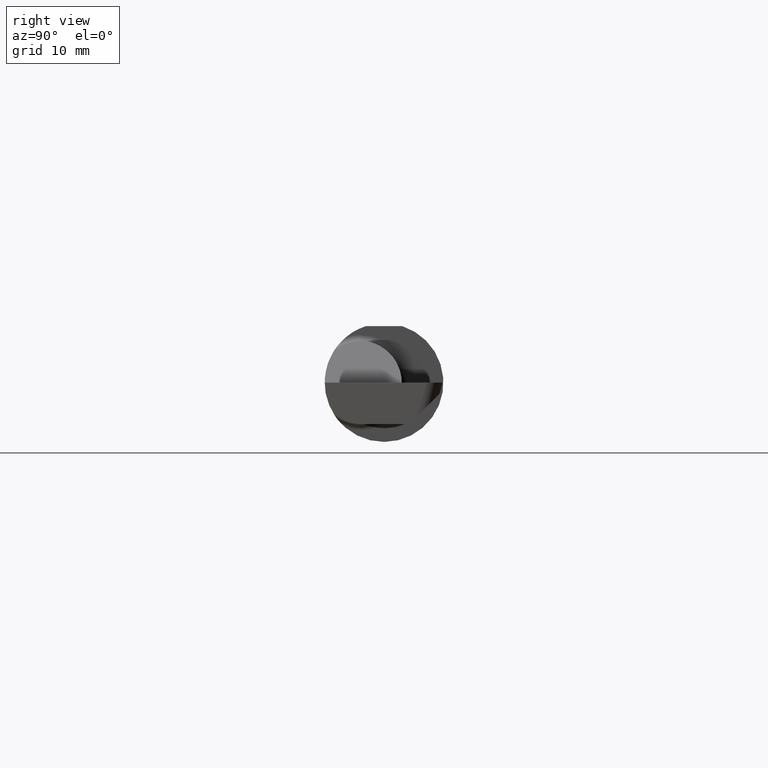
[diagram: clean part render]
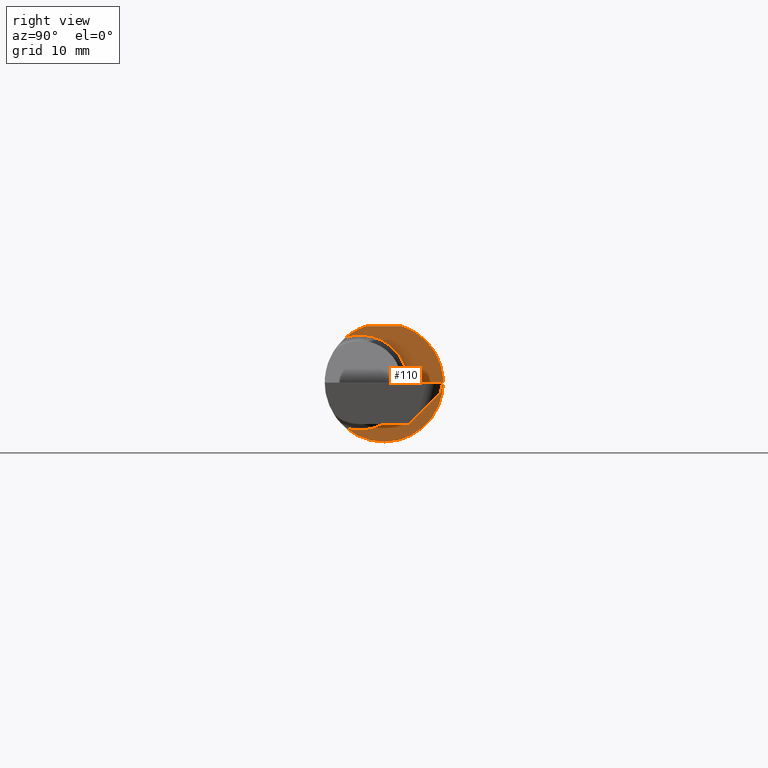
[diagram: same view with one face highlighted and labeled with its STEP entity id]
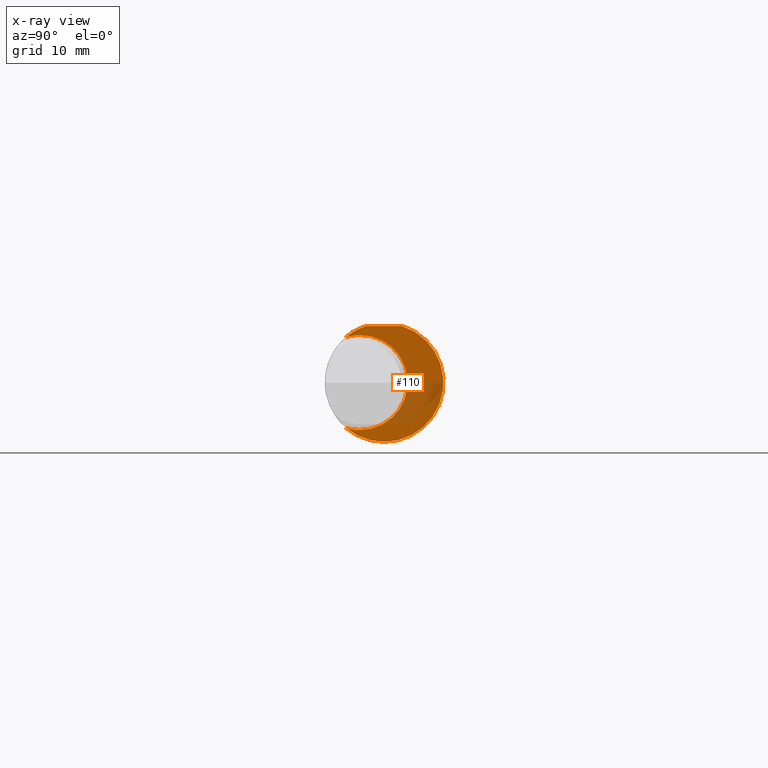
[diagram: x-ray of the same camera — body ghosted, the highlighted face saturated]
A machine part, right view. The second image highlights one B-rep face of the part: STEP entity #110.
The next image is the same camera in x-ray: the body ghosted, the highlighted face saturated — about 25% of this face is hidden behind the body in this view.
In plain terms, the highlighted planar face has unit normal (1, 0, 0).
Its self-contained STEP definition (entity closure, byte-faithful):
#10 = CARTESIAN_POINT ( 'NONE',  ( 2.200000000000000178, 0.000000000000000000, 0.000000000000000000 ) ) ;
#11 = DIRECTION ( 'NONE',  ( 0.000000000000000000, 0.000000000000000000, -1.000000000000000000 ) ) ;
#43 = CARTESIAN_POINT ( 'NONE',  ( 2.200000000000000178, -0.1008500000000000091, 0.1999999999999999556 ) ) ;
#53 = ORIENTED_EDGE ( 'NONE', *, *, #622, .T. ) ;
#73 = PLANE ( 'NONE',  #405 ) ;
#79 = CARTESIAN_POINT ( 'NONE',  ( 2.200000000000000178, -0.1008500000000000091, 0.000000000000000000 ) ) ;
#87 = DIRECTION ( 'NONE',  ( 0.000000000000000000, 1.000000000000000000, 0.000000000000000000 ) ) ;
#105 = EDGE_CURVE ( 'NONE', #796, #509, #525, .T. ) ;
#110 = ADVANCED_FACE ( 'NONE', ( #501 ), #73, .T. ) ;
#114 = AXIS2_PLACEMENT_3D ( 'NONE', #783, #210, #450 ) ;
#152 = LINE ( 'NONE', #660, #797 ) ;
#205 = EDGE_CURVE ( 'NONE', #697, #324, #456, .T. ) ;
#206 = CARTESIAN_POINT ( 'NONE',  ( 2.200000000000000178, 0.07650098038587520299, 0.2378499999999998671 ) ) ;
#210 = DIRECTION ( 'NONE',  ( 1.000000000000000000, 0.000000000000000000, 0.000000000000000000 ) ) ;
#245 = EDGE_CURVE ( 'NONE', #324, #802, #685, .T. ) ;
#255 = DIRECTION ( 'NONE',  ( 0.000000000000000000, 0.000000000000000000, 1.000000000000000000 ) ) ;
#258 = DIRECTION ( 'NONE',  ( 1.000000000000000000, 0.000000000000000000, 0.000000000000000000 ) ) ;
#272 = CARTESIAN_POINT ( 'NONE',  ( 2.200000000000000178, -0.1008500000000000091, 0.000000000000000000 ) ) ;
#293 = ORIENTED_EDGE ( 'NONE', *, *, #205, .T. ) ;
#300 = EDGE_CURVE ( 'NONE', #802, #796, #377, .T. ) ;
#314 = EDGE_CURVE ( 'NONE', #697, #518, #152, .T. ) ;
#324 = VERTEX_POINT ( 'NONE', #594 ) ;
#339 = DIRECTION ( 'NONE',  ( -1.000000000000000000, -0.000000000000000000, -0.000000000000000000 ) ) ;
#374 = CARTESIAN_POINT ( 'NONE',  ( 2.200000000000000178, 0.2498499999999999055, 0.000000000000000000 ) ) ;
#377 = CIRCLE ( 'NONE', #812, 0.1999999999999999556 ) ;
#379 = CARTESIAN_POINT ( 'NONE',  ( 2.200000000000000178, -0.1616050818046604609, -0.1905487340154979614 ) ) ;
#383 = CARTESIAN_POINT ( 'NONE',  ( 2.200000000000000178, -0.07650098038587527238, 0.2378499999999998671 ) ) ;
#402 = CARTESIAN_POINT ( 'NONE',  ( 2.200000000000000178, -0.1008500000000000091, 0.000000000000000000 ) ) ;
#405 = AXIS2_PLACEMENT_3D ( 'NONE', #374, #508, #11 ) ;
#429 = AXIS2_PLACEMENT_3D ( 'NONE', #10, #258, #439 ) ;
#439 = DIRECTION ( 'NONE',  ( 0.000000000000000000, 0.000000000000000000, -1.000000000000000000 ) ) ;
#441 = EDGE_LOOP ( 'NONE', ( #53, #480, #293, #818, #703, #452 ) ) ;
#450 = DIRECTION ( 'NONE',  ( 0.000000000000000000, 0.000000000000000000, -1.000000000000000000 ) ) ;
#452 = ORIENTED_EDGE ( 'NONE', *, *, #105, .T. ) ;
#456 = CIRCLE ( 'NONE', #114, 0.2498499999999999888 ) ;
#462 = DIRECTION ( 'NONE',  ( -1.000000000000000000, -0.000000000000000000, -0.000000000000000000 ) ) ;
#480 = ORIENTED_EDGE ( 'NONE', *, *, #314, .F. ) ;
#485 = CIRCLE ( 'NONE', #429, 0.2498499999999999888 ) ;
#494 = DIRECTION ( 'NONE',  ( -1.000000000000000000, -0.000000000000000000, -0.000000000000000000 ) ) ;
#501 = FACE_OUTER_BOUND ( 'NONE', #441, .T. ) ;
#508 = DIRECTION ( 'NONE',  ( 1.000000000000000000, 0.000000000000000000, 0.000000000000000000 ) ) ;
#509 = VERTEX_POINT ( 'NONE', #379 ) ;
#518 = VERTEX_POINT ( 'NONE', #206 ) ;
#525 = CIRCLE ( 'NONE', #773, 0.1999999999999999556 ) ;
#540 = CARTESIAN_POINT ( 'NONE',  ( 2.200000000000000178, -0.1008499999999999952, -0.1999999999999999556 ) ) ;
#594 = CARTESIAN_POINT ( 'NONE',  ( 2.200000000000000178, -0.1616050818046604609, 0.1905487340154979614 ) ) ;
#622 = EDGE_CURVE ( 'NONE', #509, #518, #485, .T. ) ;
#648 = DIRECTION ( 'NONE',  ( 0.000000000000000000, 0.000000000000000000, 1.000000000000000000 ) ) ;
#657 = AXIS2_PLACEMENT_3D ( 'NONE', #272, #339, #648 ) ;
#660 = CARTESIAN_POINT ( 'NONE',  ( 2.200000000000000178, 0.2498499999999998500, 0.2378499999999998671 ) ) ;
#685 = CIRCLE ( 'NONE', #657, 0.1999999999999999556 ) ;
#697 = VERTEX_POINT ( 'NONE', #383 ) ;
#703 = ORIENTED_EDGE ( 'NONE', *, *, #300, .T. ) ;
#773 = AXIS2_PLACEMENT_3D ( 'NONE', #79, #494, #255 ) ;
#783 = CARTESIAN_POINT ( 'NONE',  ( 2.200000000000000178, 0.000000000000000000, 0.000000000000000000 ) ) ;
#788 = DIRECTION ( 'NONE',  ( 0.000000000000000000, 0.000000000000000000, 1.000000000000000000 ) ) ;
#796 = VERTEX_POINT ( 'NONE', #540 ) ;
#797 = VECTOR ( 'NONE', #87, 39.37007874015748143 ) ;
#802 = VERTEX_POINT ( 'NONE', #43 ) ;
#812 = AXIS2_PLACEMENT_3D ( 'NONE', #402, #462, #788 ) ;
#818 = ORIENTED_EDGE ( 'NONE', *, *, #245, .T. ) ;